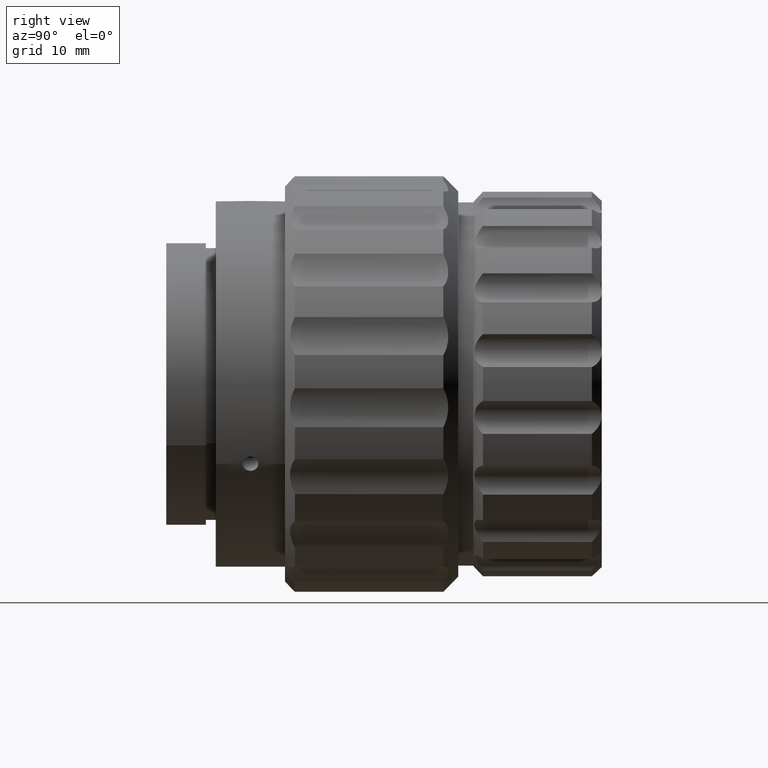
[diagram: clean part render]
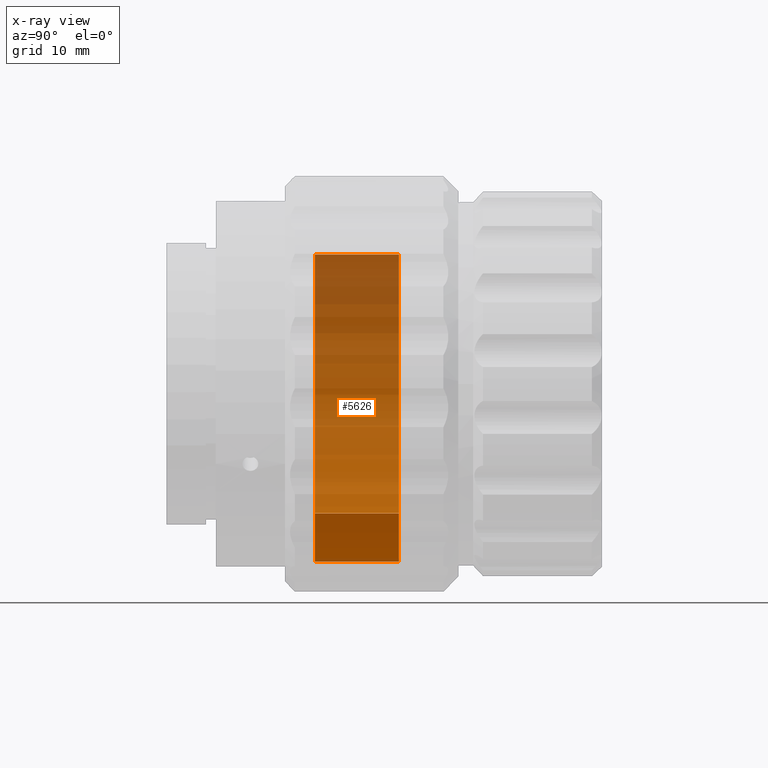
[diagram: x-ray — body ghosted, one internal face saturated and labeled with its STEP entity id]
A machine part, right view, then the same camera in x-ray: the body is ghosted and one INTERNAL B-rep face — a face not visible from any outside direction — is saturated and labeled: STEP entity #5626.
In plain terms, the highlighted cylindrical surface (partial cylindrical patch) has radius 18 mm, axis along (0, -1, -0).
Its self-contained STEP definition (entity closure, byte-faithful):
#113 = ORIENTED_EDGE ( 'NONE', *, *, #770, .T. ) ;
#132 = LINE ( 'NONE', #4772, #439 ) ;
#379 = DIRECTION ( 'NONE',  ( 0.6871969081691013947, 0.000000000000000000, -0.7264712034229765525 ) ) ;
#427 = CARTESIAN_POINT ( 'NONE',  ( 5.971701014312827738, -20.54875568700542487, 44.90330644533106863 ) ) ;
#439 = VECTOR ( 'NONE', #7886, 1000.000000000000000 ) ;
#670 = VERTEX_POINT ( 'NONE', #8237 ) ;
#770 = EDGE_CURVE ( 'NONE', #2596, #3495, #7104, .T. ) ;
#1514 = CYLINDRICAL_SURFACE ( 'NONE', #9239, 18.00000000000000000 ) ;
#2275 = EDGE_LOOP ( 'NONE', ( #7334, #113, #4670, #3542 ) ) ;
#2493 = CARTESIAN_POINT ( 'NONE',  ( -6.397843332730995591, -23.54875568700542487, 57.97978810694464613 ) ) ;
#2596 = VERTEX_POINT ( 'NONE', #4109 ) ;
#2695 = VECTOR ( 'NONE', #3255, 1000.000000000000000 ) ;
#2727 = CARTESIAN_POINT ( 'NONE',  ( 5.971701014312827738, -12.04875568700542487, 44.90330644533106863 ) ) ;
#3086 = DIRECTION ( 'NONE',  ( 0.6871969081691013947, 0.000000000000000000, -0.7264712034229765525 ) ) ;
#3255 = DIRECTION ( 'NONE',  ( 0.000000000000000000, -1.000000000000000000, -0.000000000000000000 ) ) ;
#3495 = VERTEX_POINT ( 'NONE', #5050 ) ;
#3542 = ORIENTED_EDGE ( 'NONE', *, *, #6014, .F. ) ;
#4032 = AXIS2_PLACEMENT_3D ( 'NONE', #2727, #9599, #5083 ) ;
#4109 = CARTESIAN_POINT ( 'NONE',  ( -6.397843332730995591, -12.04875568700542487, 57.97978810694464613 ) ) ;
#4161 = CIRCLE ( 'NONE', #8553, 18.00000000000000000 ) ;
#4591 = DIRECTION ( 'NONE',  ( 0.000000000000000000, -1.000000000000000000, -0.000000000000000000 ) ) ;
#4670 = ORIENTED_EDGE ( 'NONE', *, *, #6112, .T. ) ;
#4772 = CARTESIAN_POINT ( 'NONE',  ( 18.34124536135665196, -23.54875568700542487, 31.82682478371749113 ) ) ;
#4819 = CIRCLE ( 'NONE', #4032, 18.00000000000000000 ) ;
#5050 = CARTESIAN_POINT ( 'NONE',  ( -6.397843332730995591, -20.54875568700542487, 57.97978810694464613 ) ) ;
#5083 = DIRECTION ( 'NONE',  ( 0.6871969081691013947, 0.000000000000000000, -0.7264712034229765525 ) ) ;
#5515 = EDGE_CURVE ( 'NONE', #2596, #670, #4819, .T. ) ;
#5626 = ADVANCED_FACE ( 'NONE', ( #9240 ), #1514, .F. ) ;
#6014 = EDGE_CURVE ( 'NONE', #670, #8585, #132, .T. ) ;
#6112 = EDGE_CURVE ( 'NONE', #3495, #8585, #4161, .T. ) ;
#6393 = DIRECTION ( 'NONE',  ( 0.000000000000000000, -1.000000000000000000, -0.000000000000000000 ) ) ;
#7104 = LINE ( 'NONE', #2493, #2695 ) ;
#7334 = ORIENTED_EDGE ( 'NONE', *, *, #5515, .F. ) ;
#7886 = DIRECTION ( 'NONE',  ( 0.000000000000000000, -1.000000000000000000, -0.000000000000000000 ) ) ;
#8237 = CARTESIAN_POINT ( 'NONE',  ( 18.34124536135665196, -12.04875568700542487, 31.82682478371749113 ) ) ;
#8553 = AXIS2_PLACEMENT_3D ( 'NONE', #427, #6393, #379 ) ;
#8585 = VERTEX_POINT ( 'NONE', #9178 ) ;
#9178 = CARTESIAN_POINT ( 'NONE',  ( 18.34124536135665196, -20.54875568700542487, 31.82682478371749113 ) ) ;
#9239 = AXIS2_PLACEMENT_3D ( 'NONE', #10060, #4591, #3086 ) ;
#9240 = FACE_OUTER_BOUND ( 'NONE', #2275, .T. ) ;
#9599 = DIRECTION ( 'NONE',  ( 0.000000000000000000, -1.000000000000000000, -0.000000000000000000 ) ) ;
#10060 = CARTESIAN_POINT ( 'NONE',  ( 5.971701014312827738, -23.54875568700542487, 44.90330644533106863 ) ) ;